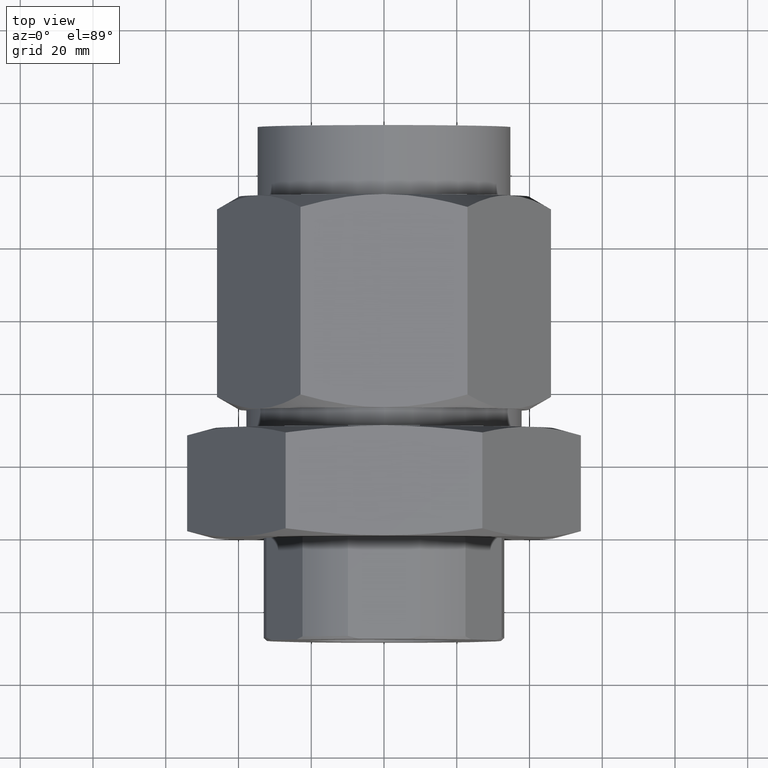
[diagram: clean part render]
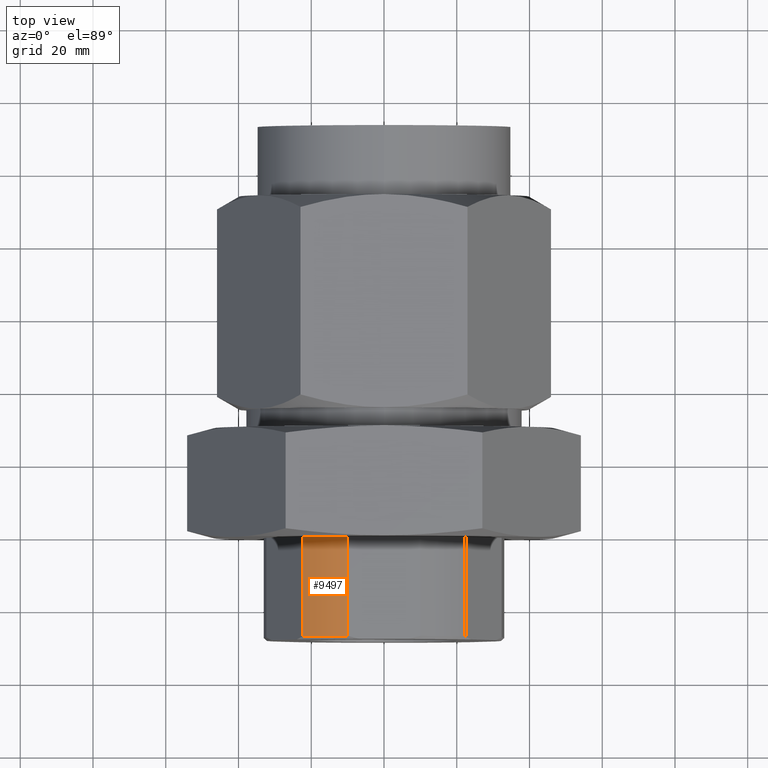
[diagram: same view with one face highlighted and labeled with its STEP entity id]
A machine part, top view. The second image highlights one B-rep face of the part: STEP entity #9497.
In plain terms, the highlighted cylindrical surface (partial cylindrical patch) has radius 33.147 mm, axis along (0, -1, -0).
Its self-contained STEP definition (entity closure, byte-faithful):
#282 = CARTESIAN_POINT ( 'NONE',  ( 1.516655047970987846E-13, -4.850326807657659778, 0.0000000000000000000 ) ) ;
#1413 = CARTESIAN_POINT ( 'NONE',  ( -0.8826255555553955690, -4.850326807657659778, 0.9612476937190860271 ) ) ;
#1630 = CARTESIAN_POINT ( 'NONE',  ( -0.3911521443120079544, -4.740365258923460168, 1.244999999999999662 ) ) ;
#1718 = EDGE_CURVE ( 'Defeatured_0_36+Defeatured_0_48+Defeatured_0_49+Defeatured_0_54', #5097, #4718, #3883, .T. ) ;
#2153 = CARTESIAN_POINT ( 'NONE',  ( -0.3911521443120079544, -5.819115258923458711, 1.244999999999999885 ) ) ;
#2193 = DIRECTION ( 'NONE',  ( -0.0000000000000000000, 1.000000000000000000, 0.0000000000000000000 ) ) ;
#2331 = CARTESIAN_POINT ( 'NONE',  ( -0.8826255555553953469, -4.740365258923460168, 0.9612476937190858051 ) ) ;
#2573 = DIRECTION ( 'NONE',  ( 0.0000000000000000000, -1.000000000000000000, -0.0000000000000000000 ) ) ;
#2598 = CYLINDRICAL_SURFACE ( 'NONE', #9129, 1.304999999999999938 ) ;
#2764 = ORIENTED_EDGE ( 'NONE', *, *, #1718, .F. ) ;
#3422 = DIRECTION ( 'NONE',  ( 0.0000000000000000000, 1.000000000000000000, 0.0000000000000000000 ) ) ;
#3437 = EDGE_CURVE ( 'Defeatured_0_54+Defeatured_0_48+Defeatured_0_36+Defeatured_0_56', #4718, #9134, #3948, .T. ) ;
#3883 = CIRCLE ( 'NONE', #7153, 1.304999999999999938 ) ;
#3948 = LINE ( 'NONE', #4483, #9553 ) ;
#4352 = EDGE_LOOP ( 'NONE', ( #2764, #6061, #8790, #9945 ) ) ;
#4483 = CARTESIAN_POINT ( 'NONE',  ( -0.3911521443120079544, -4.850326807657659778, 1.244999999999999662 ) ) ;
#4718 = VERTEX_POINT ( 'NONE', #1630 ) ;
#5097 = VERTEX_POINT ( 'NONE', #2331 ) ;
#5629 = FACE_OUTER_BOUND ( 'NONE', #4352, .T. ) ;
#6061 = ORIENTED_EDGE ( 'NONE', *, *, #8427, .F. ) ;
#6161 = AXIS2_PLACEMENT_3D ( 'NONE', #7176, #2573, #7940 ) ;
#6189 = EDGE_CURVE ( 'Defeatured_0_56+Defeatured_0_48+Defeatured_0_54+Defeatured_0_49', #9134, #8700, #7462, .T. ) ;
#7058 = CARTESIAN_POINT ( 'NONE',  ( -0.8826255555553955690, -5.819115258923458711, 0.9612476937190860271 ) ) ;
#7153 = AXIS2_PLACEMENT_3D ( 'NONE', #7993, #3422, #8792 ) ;
#7176 = CARTESIAN_POINT ( 'NONE',  ( 1.516655047970987846E-13, -5.819115258923458711, 0.0000000000000000000 ) ) ;
#7462 = CIRCLE ( 'NONE', #6161, 1.304999999999999938 ) ;
#7870 = DIRECTION ( 'NONE',  ( 0.0000000000000000000, -1.000000000000000000, -0.0000000000000000000 ) ) ;
#7909 = VECTOR ( 'NONE', #2193, 39.37007874015748143 ) ;
#7940 = DIRECTION ( 'NONE',  ( 0.8660254037844384856, 0.0000000000000000000, 0.5000000000000002220 ) ) ;
#7993 = CARTESIAN_POINT ( 'NONE',  ( 1.516655047970987846E-13, -4.740365258923460168, 0.0000000000000000000 ) ) ;
#8287 = DIRECTION ( 'NONE',  ( 0.0000000000000000000, -1.000000000000000000, -0.0000000000000000000 ) ) ;
#8427 = EDGE_CURVE ( 'Defeatured_0_49+Defeatured_0_48+Defeatured_0_56+Defeatured_0_36', #8700, #5097, #9941, .T. ) ;
#8700 = VERTEX_POINT ( 'NONE', #7058 ) ;
#8753 = DIRECTION ( 'NONE',  ( 0.8660254037844384856, 0.0000000000000000000, 0.5000000000000002220 ) ) ;
#8790 = ORIENTED_EDGE ( 'NONE', *, *, #6189, .F. ) ;
#8792 = DIRECTION ( 'NONE',  ( 0.0000000000000000000, 0.0000000000000000000, 1.000000000000000000 ) ) ;
#9129 = AXIS2_PLACEMENT_3D ( 'NONE', #282, #7870, #8753 ) ;
#9134 = VERTEX_POINT ( 'NONE', #2153 ) ;
#9497 = ADVANCED_FACE ( 'Defeatured_0_48', ( #5629 ), #2598, .T. ) ;
#9553 = VECTOR ( 'NONE', #8287, 39.37007874015748143 ) ;
#9941 = LINE ( 'NONE', #1413, #7909 ) ;
#9945 = ORIENTED_EDGE ( 'NONE', *, *, #3437, .F. ) ;